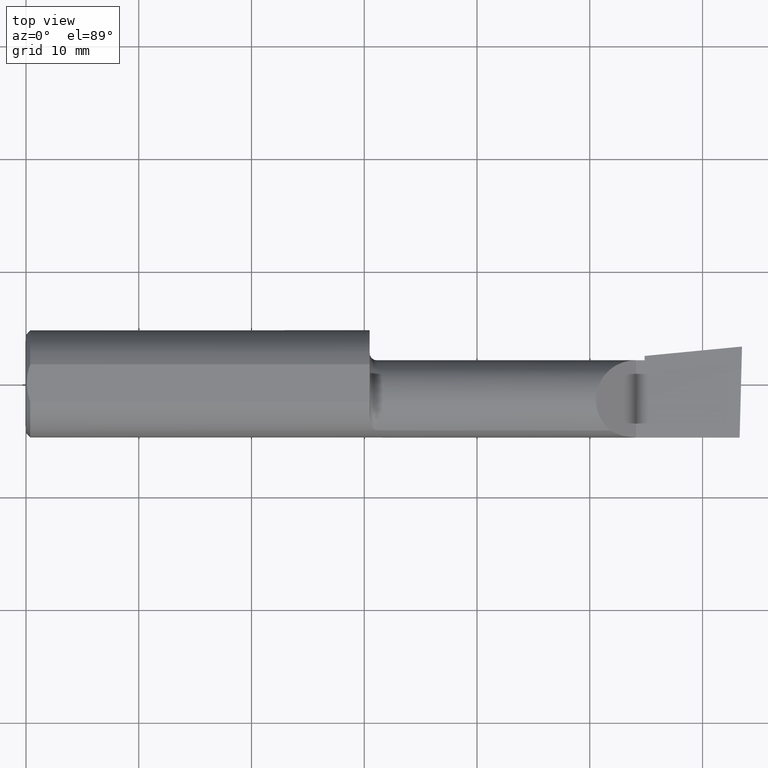
[diagram: clean part render]
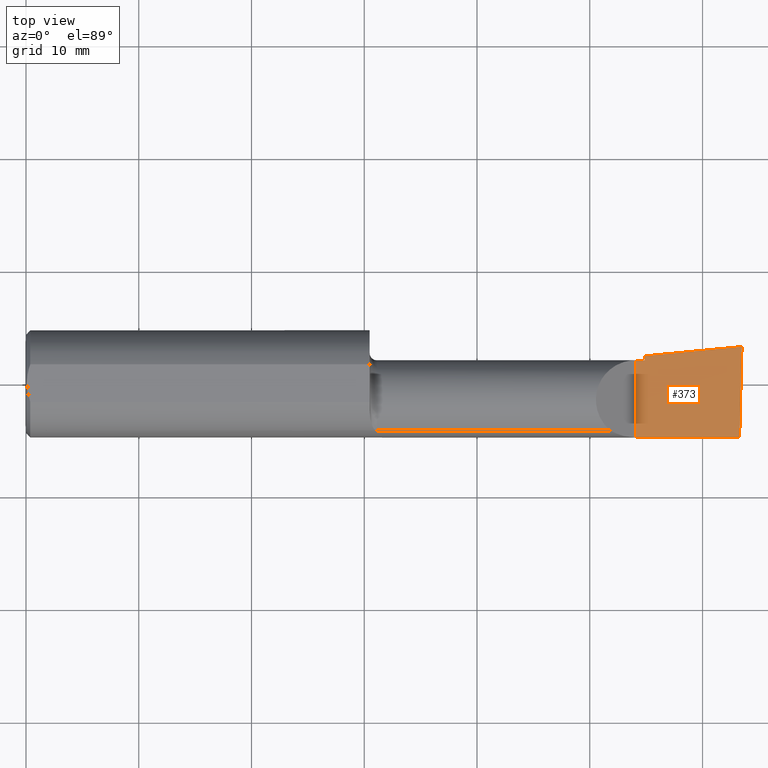
[diagram: same view with one face highlighted and labeled with its STEP entity id]
A machine part, top view. The second image highlights one B-rep face of the part: STEP entity #373.
In plain terms, the highlighted planar face has unit normal (-0, 0, -1).
Its self-contained STEP definition (entity closure, byte-faithful):
#7 = ORIENTED_EDGE ( 'NONE', *, *, #411, .F. ) ;
#29 = VERTEX_POINT ( 'NONE', #387 ) ;
#55 = FACE_OUTER_BOUND ( 'NONE', #351, .T. ) ;
#59 = LINE ( 'NONE', #598, #220 ) ;
#81 = LINE ( 'NONE', #280, #538 ) ;
#104 = LINE ( 'NONE', #498, #600 ) ;
#108 = VECTOR ( 'NONE', #396, 39.37007874015748143 ) ;
#135 = ORIENTED_EDGE ( 'NONE', *, *, #501, .F. ) ;
#167 = CARTESIAN_POINT ( 'NONE',  ( 2.491672876940991710, -0.1873499999999999888, 6.915950918908297591E-17 ) ) ;
#186 = DIRECTION ( 'NONE',  ( -6.829619984160658816E-18, 1.000000000000000000, 7.059994452165177242E-34 ) ) ;
#188 = EDGE_CURVE ( 'NONE', #472, #381, #321, .T. ) ;
#192 = VECTOR ( 'NONE', #268, 39.37007874015748143 ) ;
#196 = ORIENTED_EDGE ( 'NONE', *, *, #302, .F. ) ;
#205 = DIRECTION ( 'NONE',  ( -1.033731667140896077E-16, 0.000000000000000000, -1.000000000000000000 ) ) ;
#218 = VERTEX_POINT ( 'NONE', #471 ) ;
#220 = VECTOR ( 'NONE', #405, 39.37007874015748143 ) ;
#253 = CARTESIAN_POINT ( 'NONE',  ( 0.5470260790800316464, -0.05740000000000000657, 2.701812985571356346E-16 ) ) ;
#255 = EDGE_CURVE ( 'NONE', #29, #529, #81, .T. ) ;
#256 = DIRECTION ( 'NONE',  ( 1.000000000000000000, 6.829619984160658046E-18, 0.000000000000000000 ) ) ;
#261 = ORIENTED_EDGE ( 'NONE', *, *, #255, .F. ) ;
#268 = DIRECTION ( 'NONE',  ( -0.000000000000000000, 1.000000000000000000, -0.000000000000000000 ) ) ;
#271 = CARTESIAN_POINT ( 'NONE',  ( 2.490039159128059953, -0.2497391662021650194, 6.932588350567417155E-17 ) ) ;
#280 = CARTESIAN_POINT ( 'NONE',  ( 2.160000000000000142, -0.2500000000000000555, 1.034430765243970311E-16 ) ) ;
#302 = EDGE_CURVE ( 'NONE', #472, #546, #59, .T. ) ;
#317 = LINE ( 'NONE', #553, #192 ) ;
#321 = LINE ( 'NONE', #271, #623 ) ;
#341 = AXIS2_PLACEMENT_3D ( 'NONE', #350, #205, #547 ) ;
#345 = EDGE_CURVE ( 'NONE', #218, #29, #104, .T. ) ;
#350 = CARTESIAN_POINT ( 'NONE',  ( 2.500000000000000000, -0.2500000000000000555, 6.829619984160658046E-17 ) ) ;
#351 = EDGE_LOOP ( 'NONE', ( #196, #605, #7, #261, #441, #135 ) ) ;
#373 = ADVANCED_FACE ( 'NONE', ( #55 ), #502, .F. ) ;
#381 = VERTEX_POINT ( 'NONE', #442 ) ;
#387 = CARTESIAN_POINT ( 'NONE',  ( 2.160000000000000142, 0.08265000000000004288, 3.267291166268306182E-16 ) ) ;
#393 = LINE ( 'NONE', #253, #108 ) ;
#396 = DIRECTION ( 'NONE',  ( 0.9953961983671787417, 0.09584575252022459191, -1.028972571603813720E-16 ) ) ;
#405 = DIRECTION ( 'NONE',  ( -1.000000000000000000, -0.000000000000000000, -0.000000000000000000 ) ) ;
#411 = EDGE_CURVE ( 'NONE', #529, #381, #393, .T. ) ;
#441 = ORIENTED_EDGE ( 'NONE', *, *, #345, .F. ) ;
#442 = CARTESIAN_POINT ( 'NONE',  ( 2.499999999999978684, 0.1306500000000237749, 8.405341369881224661E-14 ) ) ;
#470 = CARTESIAN_POINT ( 'NONE',  ( 2.160000000000000142, 0.09791172361284168624, 3.286754617377316716E-16 ) ) ;
#471 = CARTESIAN_POINT ( 'NONE',  ( 2.129999999999999893, 0.08264999999999983471, 1.065442715258197396E-16 ) ) ;
#472 = VERTEX_POINT ( 'NONE', #167 ) ;
#498 = CARTESIAN_POINT ( 'NONE',  ( -9.564882787816662316E-19, 0.08264999999999995961, 3.267291166268304703E-16 ) ) ;
#501 = EDGE_CURVE ( 'NONE', #546, #218, #317, .T. ) ;
#502 = PLANE ( 'NONE',  #341 ) ;
#510 = CARTESIAN_POINT ( 'NONE',  ( 2.129999999999999893, -0.1873499999999999888, 1.065442715258197396E-16 ) ) ;
#529 = VERTEX_POINT ( 'NONE', #470 ) ;
#538 = VECTOR ( 'NONE', #186, 39.37007874015748143 ) ;
#546 = VERTEX_POINT ( 'NONE', #510 ) ;
#547 = DIRECTION ( 'NONE',  ( -1.000000000000000000, 0.000000000000000000, 1.033731667140896077E-16 ) ) ;
#553 = CARTESIAN_POINT ( 'NONE',  ( 2.129999999999999893, -0.2500000000000000555, 1.065442715258197396E-16 ) ) ;
#598 = CARTESIAN_POINT ( 'NONE',  ( 3.377502344341257155E-32, -0.1873499999999999610, 3.267291166268304703E-16 ) ) ;
#600 = VECTOR ( 'NONE', #256, 39.37007874015748143 ) ;
#605 = ORIENTED_EDGE ( 'NONE', *, *, #188, .T. ) ;
#623 = VECTOR ( 'NONE', #626, 39.37007874015748854 ) ;
#626 = DIRECTION ( 'NONE',  ( 0.02617694830779364323, 0.9996573249755593693, -2.665804247635780349E-18 ) ) ;